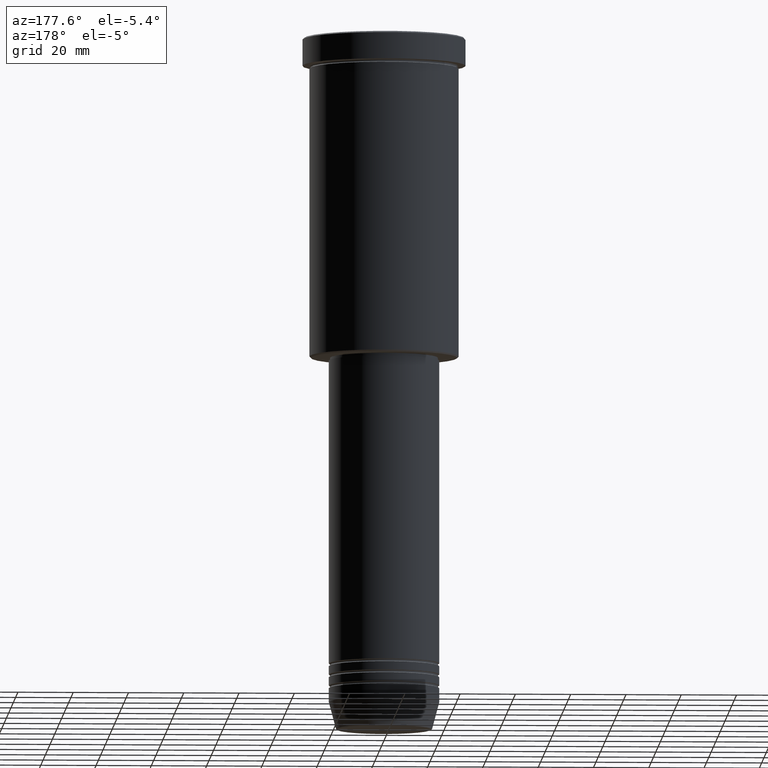
[diagram: clean part render]
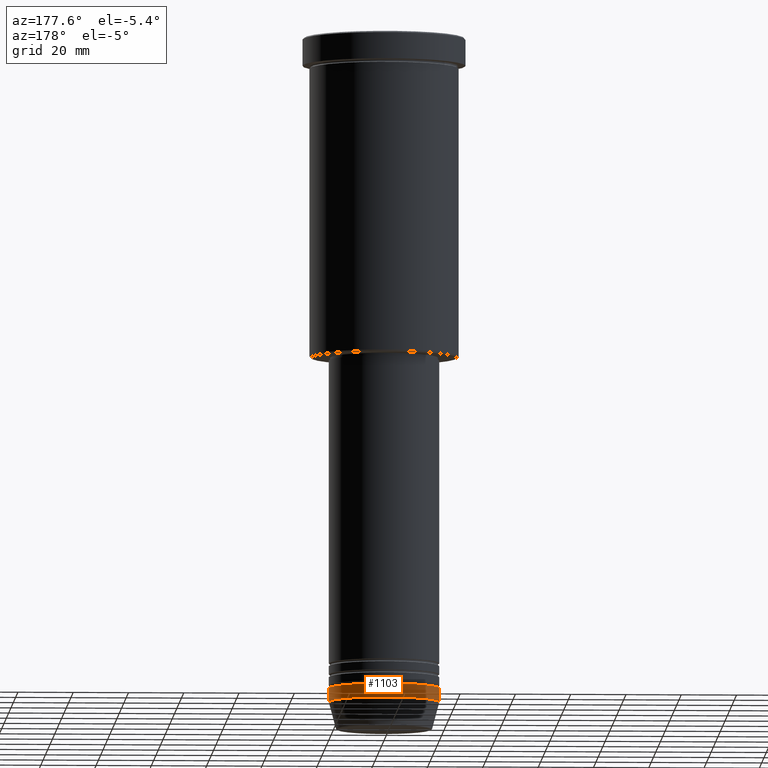
[diagram: same view with one face highlighted and labeled with its STEP entity id]
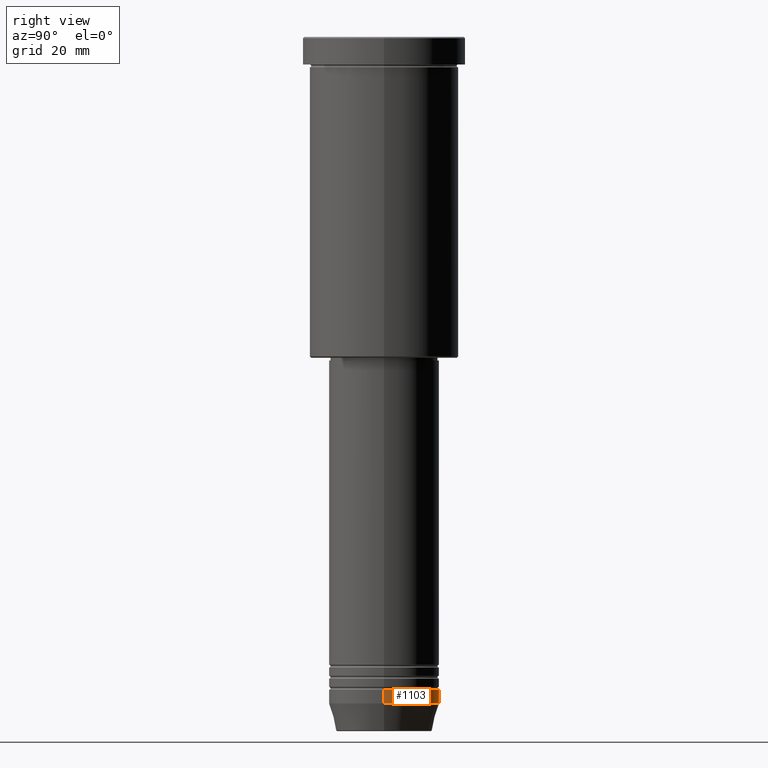
[diagram: same view with one face highlighted and labeled with its STEP entity id]
A machine part, auxiliary view. The second image highlights one B-rep face of the part: STEP entity #1103.
A second angle (right view) of the same face is appended — the face is thin or edge-on in the first view.
In plain terms, the highlighted cylindrical surface (partial cylindrical patch) has radius 20 mm, axis along (-0, -0, 1).
Its self-contained STEP definition (entity closure, byte-faithful):
#1 = DIRECTION ( 'NONE',  ( 1.000000000000000000, 0.000000000000000000, 0.000000000000000000 ) ) ;
#9 = CARTESIAN_POINT ( 'NONE',  ( 0.000000000000000000, 0.000000000000000000, -236.0000000000000284 ) ) ;
#68 = VECTOR ( 'NONE', #244, 1000.000000000000000 ) ;
#114 = VERTEX_POINT ( 'NONE', #357 ) ;
#118 = CYLINDRICAL_SURFACE ( 'NONE', #629, 20.00000000000000000 ) ;
#156 = EDGE_CURVE ( 'NONE', #854, #205, #193, .T. ) ;
#193 = LINE ( 'NONE', #1114, #293 ) ;
#199 = CIRCLE ( 'NONE', #879, 20.00000000000000000 ) ;
#205 = VERTEX_POINT ( 'NONE', #1010 ) ;
#244 = DIRECTION ( 'NONE',  ( -0.000000000000000000, -0.000000000000000000, 1.000000000000000000 ) ) ;
#293 = VECTOR ( 'NONE', #307, 1000.000000000000000 ) ;
#307 = DIRECTION ( 'NONE',  ( -0.000000000000000000, -0.000000000000000000, 1.000000000000000000 ) ) ;
#324 = ORIENTED_EDGE ( 'NONE', *, *, #748, .F. ) ;
#357 = CARTESIAN_POINT ( 'NONE',  ( 20.00000000000000000, 0.000000000000000000, -236.0000000000000284 ) ) ;
#360 = CARTESIAN_POINT ( 'NONE',  ( 20.00000000000000000, 0.000000000000000000, -241.0000000000000000 ) ) ;
#411 = CIRCLE ( 'NONE', #881, 20.00000000000000000 ) ;
#476 = DIRECTION ( 'NONE',  ( -0.000000000000000000, -0.000000000000000000, 1.000000000000000000 ) ) ;
#515 = ORIENTED_EDGE ( 'NONE', *, *, #1029, .F. ) ;
#532 = VERTEX_POINT ( 'NONE', #360 ) ;
#542 = DIRECTION ( 'NONE',  ( -0.000000000000000000, -0.000000000000000000, 1.000000000000000000 ) ) ;
#585 = CARTESIAN_POINT ( 'NONE',  ( -20.00000000000000000, 2.449293598294706513E-15, -241.0000000000000000 ) ) ;
#615 = ORIENTED_EDGE ( 'NONE', *, *, #156, .T. ) ;
#629 = AXIS2_PLACEMENT_3D ( 'NONE', #907, #542, #1 ) ;
#657 = CARTESIAN_POINT ( 'NONE',  ( 0.000000000000000000, 0.000000000000000000, -241.0000000000000000 ) ) ;
#678 = EDGE_CURVE ( 'NONE', #532, #854, #199, .T. ) ;
#728 = DIRECTION ( 'NONE',  ( 1.000000000000000000, 0.000000000000000000, 0.000000000000000000 ) ) ;
#740 = DIRECTION ( 'NONE',  ( 1.000000000000000000, 0.000000000000000000, 0.000000000000000000 ) ) ;
#748 = EDGE_CURVE ( 'NONE', #532, #114, #1104, .T. ) ;
#779 = CARTESIAN_POINT ( 'NONE',  ( 20.00000000000000000, 0.000000000000000000, 0.000000000000000000 ) ) ;
#825 = DIRECTION ( 'NONE',  ( -0.000000000000000000, -0.000000000000000000, 1.000000000000000000 ) ) ;
#854 = VERTEX_POINT ( 'NONE', #585 ) ;
#879 = AXIS2_PLACEMENT_3D ( 'NONE', #657, #825, #740 ) ;
#881 = AXIS2_PLACEMENT_3D ( 'NONE', #9, #476, #728 ) ;
#906 = ORIENTED_EDGE ( 'NONE', *, *, #678, .T. ) ;
#907 = CARTESIAN_POINT ( 'NONE',  ( 0.000000000000000000, 0.000000000000000000, 0.000000000000000000 ) ) ;
#1010 = CARTESIAN_POINT ( 'NONE',  ( -20.00000000000000000, 2.449293598294706513E-15, -236.0000000000000284 ) ) ;
#1014 = FACE_OUTER_BOUND ( 'NONE', #1097, .T. ) ;
#1029 = EDGE_CURVE ( 'NONE', #114, #205, #411, .T. ) ;
#1097 = EDGE_LOOP ( 'NONE', ( #906, #615, #515, #324 ) ) ;
#1103 = ADVANCED_FACE ( 'NONE', ( #1014 ), #118, .T. ) ;
#1104 = LINE ( 'NONE', #779, #68 ) ;
#1114 = CARTESIAN_POINT ( 'NONE',  ( -20.00000000000000000, 2.449293598294706513E-15, 0.000000000000000000 ) ) ;